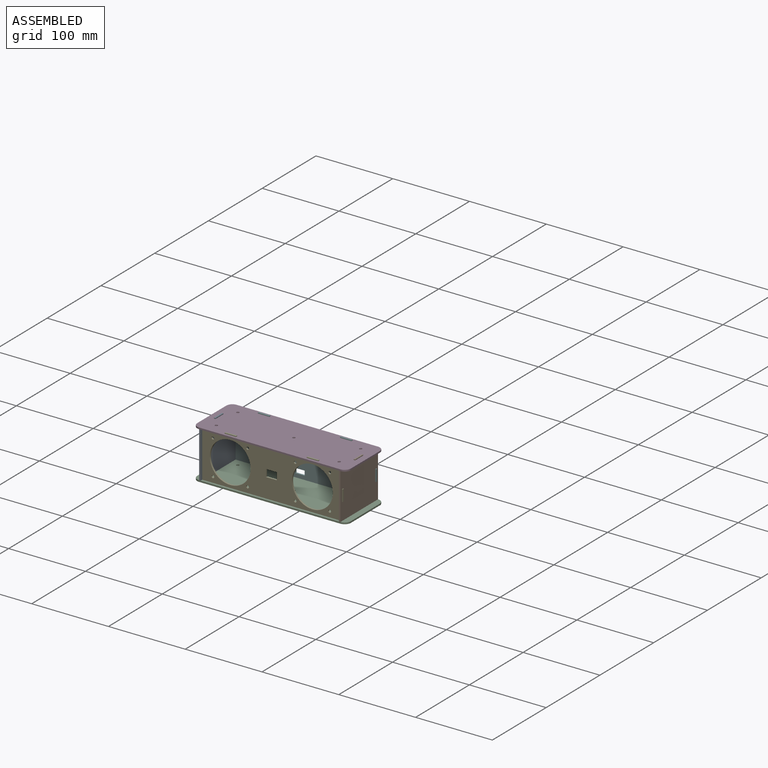
[diagram: assembled view]
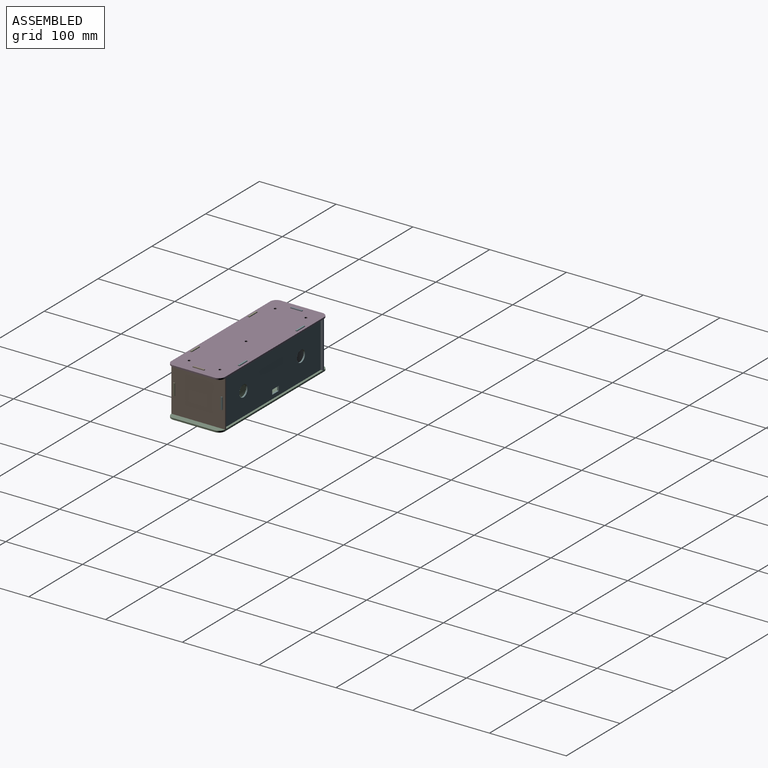
[diagram: assembled view, second angle]
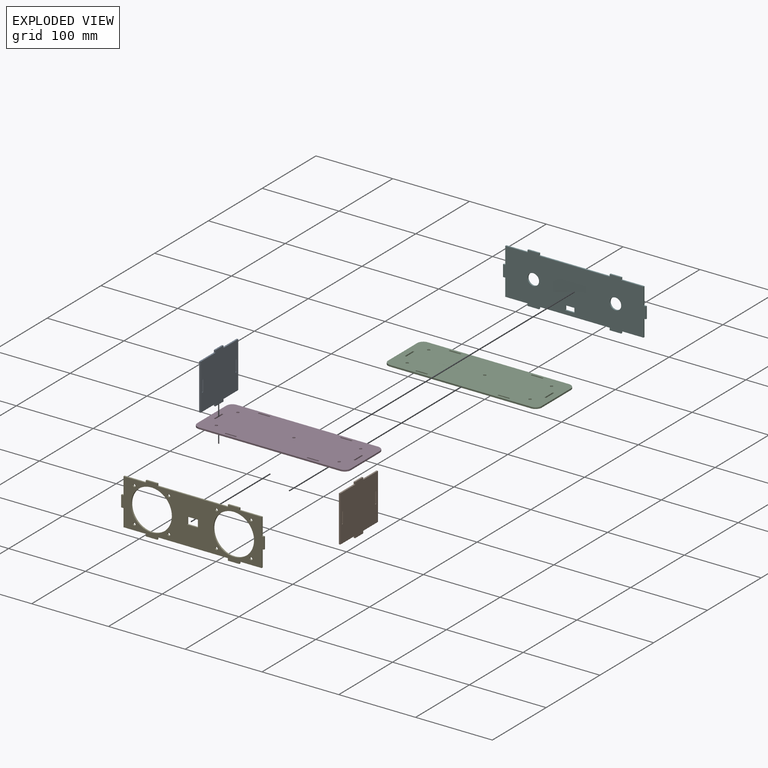
[diagram: exploded view]
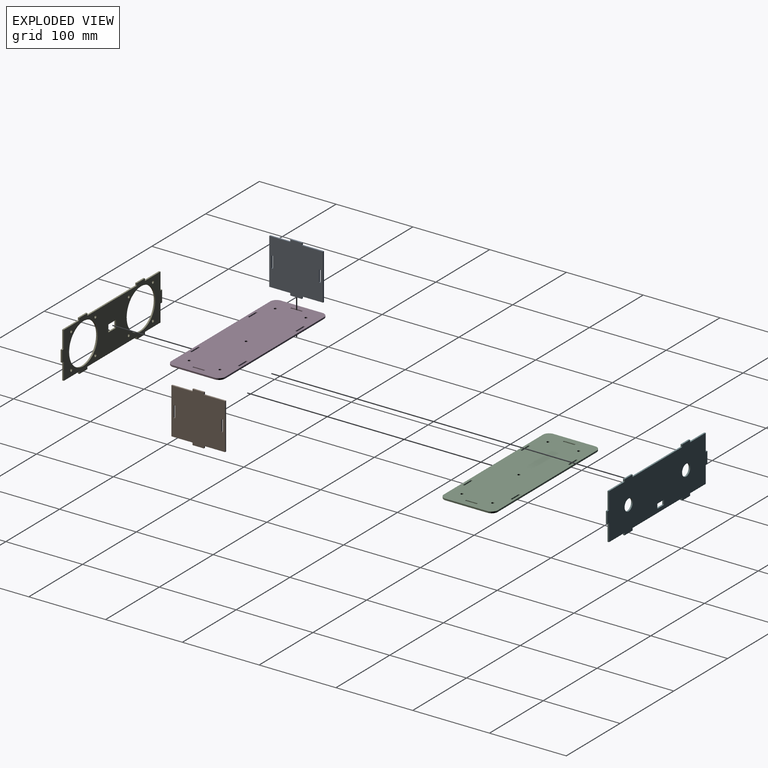
[diagram: exploded view, second angle]
FCSTD DOCUMENT  (FreeCAD 1.0R39109 (Git))
Label: aimiya_asm
License: All rights reserved
LicenseURL: https://en.wikipedia.org/wiki/All_rights_reserved
objects: App::Link×6, App::FeaturePython×6, Assembly::JointGroup×1, Assembly::AssemblyObject×1
EXTERNAL_REF file=aimiya_bt_spk_top_bot.FCStd obj=Body
EXTERNAL_REF file=aimiya_bt_spk_side.FCStd obj=Body
EXTERNAL_REF file=aimiya_bt_spk_front.FCStd obj=Body001
EXTERNAL_REF file=aimiya_bt_spk_back.FCStd obj=Body001

FEATURE [App::Link] main
  LinkedObject = -> <external aimiya_bt_spk_top_bot.FCStd>#Body
FEATURE [App::FeaturePython] GroundedJoint  # Assembly grounded joint (typed FeaturePython)
  ObjectToGround = -> main
FEATURE [App::Link] main001
  LinkPlacement = pos=(-6.34e-14,-9e-16,62) rot=(0,0,1;0rad)
  LinkedObject = -> <external aimiya_bt_spk_top_bot.FCStd>#Body
  Placement = pos=(-6.34e-14,-9e-16,62) rot=(0,0,1;0rad)
FEATURE [App::Link] body
  LinkPlacement = pos=(10,70,2) rot=(-0.57735,0.57735,0.57735;4.18879rad)
  LinkedObject = -> <external aimiya_bt_spk_side.FCStd>#Body
  Placement = pos=(10,70,2) rot=(-0.57735,0.57735,0.57735;4.18879rad)
FEATURE [App::Link] body001
  LinkPlacement = pos=(192,70,2) rot=(-0.57735,0.57735,0.57735;4.18879rad)
  LinkedObject = -> <external aimiya_bt_spk_side.FCStd>#Body
  Placement = pos=(192,70,2) rot=(-0.57735,0.57735,0.57735;4.18879rad)
FEATURE [App::Link] main002
  LinkPlacement = pos=(10,5,2) rot=(1,0,0;1.5708rad)
  LinkedObject = -> <external aimiya_bt_spk_front.FCStd>#Body001
  Placement = pos=(10,5,2) rot=(1,0,0;1.5708rad)
FEATURE [App::Link] main003
  LinkPlacement = pos=(190,65,2) rot=(0,0.707107,0.707107;3.14159rad)
  LinkedObject = -> <external aimiya_bt_spk_back.FCStd>#Body001
  Placement = pos=(190,65,2) rot=(0,0.707107,0.707107;3.14159rad)
FEATURE [App::FeaturePython] Joint  label="고정됨"  # Assembly joint (typed FeaturePython)
  Activated = true
  AngleMax = 0
  AngleMin = 0
  Detach1 = false
  Detach2 = false
  Distance = 0
  Distance2 = 0
  EnableAngleMax = false
  EnableAngleMin = false
  EnableLengthMax = false
  EnableLengthMin = false
  JointType = 0 (Fixed)
  LengthMax = 0
  LengthMin = 0
  Offset2 = pos=(0,0,0) rot=(0,0,-1;1.5708rad)
  Placement1 = pos=(35,0,0) rot=(0.707107,0,0.707107;3.14159rad)
  Placement2 = pos=(10,35,2) rot=(0,0.707107,0.707107;3.14159rad)
  Reference1 = -> Assembly [body.Sketch.Edge1,body.Sketch.Edge1]
  Reference2 = -> Assembly [main.Edge62,main.Edge62]
FEATURE [App::FeaturePython] Joint001  label="고정됨001"  # Assembly joint (typed FeaturePython)
  Activated = true
  AngleMax = 0
  AngleMin = 0
  Detach1 = false
  Detach2 = false
  Distance = 0
  Distance2 = 0
  EnableAngleMax = false
  EnableAngleMin = false
  EnableLengthMax = false
  EnableLengthMin = false
  JointType = 0 (Fixed)
  LengthMax = 0
  LengthMin = 0
  Offset2 = pos=(0,0,0) rot=(0,0,-1;1.5708rad)
  Placement1 = pos=(35,0,0) rot=(0.707107,0,0.707107;3.14159rad)
  Placement2 = pos=(192,35,2) rot=(0,-0.707107,0.707107;3.14159rad)
  Reference1 = -> Assembly [body001.Sketch.Edge1,body001.Sketch.Edge1]
  Reference2 = -> Assembly [main.Edge73,main.Edge73]
FEATURE [App::FeaturePython] Joint002  label="고정됨002"  # Assembly joint (typed FeaturePython)
  Activated = true
  AngleMax = 0
  AngleMin = 0
  Detach1 = false
  Detach2 = false
  Distance = 0
  Distance2 = 0
  EnableAngleMax = false
  EnableAngleMin = false
  EnableLengthMax = false
  EnableLengthMin = false
  JointType = 0 (Fixed)
  LengthMax = 0
  LengthMin = 0
  Placement1 = pos=(180,37.5,1) rot=(0,0,1;0rad)
  Placement2 = pos=(66,37.5,2) rot=(-0.707107,0,0.707107;3.14159rad)
  Reference1 = -> Assembly [main002.Edge110,main002.Edge110]
  Reference2 = -> Assembly [body001.Edge44,body001.Edge44]
FEATURE [App::FeaturePython] Joint003  label="고정됨003"  # Assembly joint (typed FeaturePython)
  Activated = true
  AngleMax = 0
  AngleMin = 0
  Detach1 = false
  Detach2 = false
  Distance = 0
  Distance2 = 0
  EnableAngleMax = false
  EnableAngleMin = false
  EnableLengthMax = false
  EnableLengthMin = false
  JointType = 0 (Fixed)
  LengthMax = 0
  LengthMin = 0
  Placement1 = pos=(0,37.5,1) rot=(0,0,1;0rad)
  Placement2 = pos=(4,37.5,2) rot=(0.707107,0,0.707107;3.14159rad)
  Reference1 = -> Assembly [main003.Edge40,main003.Edge40]
  Reference2 = -> Assembly [body001.Edge37,body001.Edge37]
FEATURE [App::FeaturePython] Joint004  label="고정됨004"  # Assembly joint (typed FeaturePython)
  Activated = true
  AngleMax = 0
  AngleMin = 0
  Detach1 = false
  Detach2 = false
  Distance = 0
  Distance2 = 0
  EnableAngleMax = false
  EnableAngleMin = false
  EnableLengthMax = false
  EnableLengthMin = false
  JointType = 0 (Fixed)
  LengthMax = 0
  LengthMin = 0
  Offset2 = pos=(0,0,0) rot=(0,0,1;1.5708rad)
  Placement1 = pos=(44,60,1) rot=(0,0,1;0rad)
  Placement2 = pos=(54,4,0) rot=(-1,0,0;4.71239rad)
  Reference1 = -> Assembly [main002.Edge103,main002.Edge103]
  Reference2 = -> Assembly [main001.Edge14,main001.Edge14]
FEATURE [Assembly::JointGroup] Joints
  Group = -> [GroundedJoint,Joint,Joint001,Joint002,Joint003,Joint004]
FEATURE [Assembly::AssemblyObject] Assembly
  Group = -> [Joints,main,GroundedJoint,main001,body,body001,main002,main003,Joint,Joint001,Joint002,Joint003,Joint004]
  Origin = -> Origin
  Type = Assembly

RESOLVED EXTERNAL PARTS (link-assembly join: the EXTERNAL_REF files above that resolve inside this repo's crawl, each included once):
---- part aimiya_bt_spk_back.FCStd = doc fcstd_3eabdf9989e4 ----
FCSTD DOCUMENT  (FreeCAD 1.0R39109 (Git))
Label: aimiya_bt_spk_back
License: All rights reserved
LicenseURL: https://en.wikipedia.org/wiki/All_rights_reserved
objects: Sketcher::SketchObject×2, PartDesign::Pad×1, PartDesign::Pocket×1, PartDesign::Body×1
note: 11 computed .brp shape members not serialized (recipe doc carries the construction recipe); baked Part::Feature solids carry a one-line shape summary decoded from their .brp

FEATURE [Sketcher::SketchObject] Sketch  label="holes"
  ArcFitTolerance = 1e-06
  AttachmentSupport = -> [XY_Plane001]
  FullyConstrained = true
  MakeInternals = false
  MapMode = 5
  sketch-geometry (15):
    g0: LineSegment [constr] StartX=0 StartY=0 StartZ=0 EndX=180 EndY=0 EndZ=0
    g1: LineSegment [constr] StartX=180 StartY=0 StartZ=0 EndX=180 EndY=60 EndZ=0
    g2: LineSegment [constr] StartX=180 StartY=60 StartZ=0 EndX=0 EndY=60 EndZ=0
    g3: LineSegment [constr] StartX=0 StartY=60 StartZ=0 EndX=0 EndY=0 EndZ=0
    g4: LineSegment [constr] StartX=0 StartY=30 StartZ=0 EndX=180 EndY=30 EndZ=0
    g5: LineSegment [constr] StartX=90 StartY=60 StartZ=0 EndX=90 EndY=0 EndZ=0
    g6: GeomPoint [constr] X=90 Y=30 Z=0
    g7: GeomPoint [constr] X=36.5 Y=30 Z=0
    g8: Circle CenterX=36.5 CenterY=30 CenterZ=0 NormalX=0 NormalY=0 NormalZ=1 AngleXU=0 Radius=7.5
    g9: Circle CenterX=143.5 CenterY=30 CenterZ=0 NormalX=0 NormalY=0 NormalZ=1 AngleXU=0 Radius=7.5
    g10: GeomPoint [constr] X=102 Y=5 Z=0
    g11: LineSegment StartX=102 StartY=5 StartZ=0 EndX=102 EndY=11 EndZ=0
    g12: LineSegment StartX=102 StartY=11 StartZ=0 EndX=90 EndY=11 EndZ=0
    g13: LineSegment StartX=90 StartY=11 StartZ=0 EndX=90 EndY=5 EndZ=0
    g14: LineSegment StartX=90 StartY=5 StartZ=0 EndX=102 EndY=5 EndZ=0
  constraints (35):
    c: Coincident(g0,g1)
    c: Coincident(g1,g2)
    c: Coincident(g2,g3)
    c: Coincident(g3,g0)
    c: Horizontal(g0)
    c: Horizontal(g2)
    c: Vertical(g1)
    c: Vertical(g3)
    c: Coincident(g0,g-1)
    c: DistanceX(g0,g0) = 180
    c: DistanceY(g3,g3) = 60
    c: Symmetric(g3,g3,g4)
    c: Symmetric(g1,g1,g4)
    c: Symmetric(g2,g2,g5)
    c: Symmetric(g0,g0,g5)
    c: Symmetric(g4,g4,g6)
    c: PointOnObject(g7,g4)
    c: DistanceX(g7,g6) = 53.5
    c: Diameter(g8) = 15
    c: Coincident(g8,g7)
    c: Equal(g8,g9)
    c: Symmetric(g8,g9,g5)
    c: Distance(g10,g0) = 5
    c: Distance(g10,g5) = 12
    c: Coincident(g11,g12)
    c: Coincident(g12,g13)
    c: Coincident(g13,g14)
    c: Coincident(g14,g11)
    c: Vertical(g11)
    c: Vertical(g13)
    c: Horizontal(g12)
    c: Horizontal(g14)
    c: Distance(g12,g14) = 6
    c: Coincident(g11,g10)
    c: PointOnObject(g12,g5)
FEATURE [Sketcher::SketchObject] Sketch001
  ArcFitTolerance = 1e-06
  AttachmentSupport = -> [XY_Plane001]
  FullyConstrained = true
  MakeInternals = false
  MapMode = 5
  sketch-geometry (33):
    g0: LineSegment StartX=0 StartY=0 StartZ=0 EndX=180 EndY=0 EndZ=0
    g1: LineSegment StartX=180 StartY=0 StartZ=0 EndX=180 EndY=60 EndZ=0
    g2: LineSegment StartX=180 StartY=60 StartZ=0 EndX=0 EndY=60 EndZ=0
    g3: LineSegment StartX=0 StartY=60 StartZ=0 EndX=0 EndY=0 EndZ=0
    g4: LineSegment [constr] StartX=0 StartY=30 StartZ=0 EndX=180 EndY=30 EndZ=0
    g5: LineSegment [constr] StartX=90 StartY=60 StartZ=0 EndX=90 EndY=0 EndZ=0
    g6: LineSegment [constr] StartX=36.5 StartY=60 StartZ=0 EndX=36.5 EndY=0 EndZ=0
    g7: LineSegment StartX=29 StartY=60 StartZ=0 EndX=29 EndY=63 EndZ=0
    g8: LineSegment StartX=29 StartY=63 StartZ=0 EndX=44 EndY=63 EndZ=0
    g9: LineSegment StartX=44 StartY=60 StartZ=0 EndX=44 EndY=63 EndZ=0
    g10: LineSegment StartX=29 StartY=60 StartZ=0 EndX=44 EndY=60 EndZ=0
    g11: LineSegment [constr] StartX=36.5 StartY=63 StartZ=0 EndX=36.5 EndY=60 EndZ=0
    g12: LineSegment StartX=29 StartY=3e-16 StartZ=0 EndX=29 EndY=-3 EndZ=0
    g13: LineSegment StartX=29 StartY=-3 StartZ=0 EndX=44 EndY=-3 EndZ=0
    g14: LineSegment StartX=44 StartY=-5.5e-15 StartZ=0 EndX=44 EndY=-3 EndZ=0
    g15: LineSegment StartX=29 StartY=3e-16 StartZ=0 EndX=44 EndY=-5.5e-15 EndZ=0
    g16: LineSegment StartX=151 StartY=60 StartZ=0 EndX=151 EndY=63 EndZ=0
    g17: LineSegment StartX=151 StartY=63 StartZ=0 EndX=136 EndY=63 EndZ=0
    g18: LineSegment StartX=136 StartY=60 StartZ=0 EndX=136 EndY=63 EndZ=0
    g19: LineSegment StartX=151 StartY=60 StartZ=0 EndX=136 EndY=60 EndZ=0
    g20: LineSegment StartX=151 StartY=3e-16 StartZ=0 EndX=151 EndY=-3 EndZ=0
    g21: LineSegment StartX=151 StartY=-3 StartZ=0 EndX=136 EndY=-3 EndZ=0
    g22: LineSegment StartX=136 StartY=-5.5e-15 StartZ=0 EndX=136 EndY=-3 EndZ=0
    g23: LineSegment StartX=151 StartY=3e-16 StartZ=0 EndX=136 EndY=-5.5e-15 EndZ=0
    g24: LineSegment StartX=0 StartY=37.5 StartZ=0 EndX=-3 EndY=37.5 EndZ=0
    g25: LineSegment StartX=-3 StartY=37.5 StartZ=0 EndX=-3 EndY=22.5 EndZ=0
    g26: LineSegment StartX=-3 StartY=22.5 StartZ=0 EndX=0 EndY=22.5 EndZ=0
    g27: LineSegment [constr] StartX=-3 StartY=30 StartZ=0 EndX=0 EndY=30 EndZ=0
    g28: LineSegment StartX=0 StartY=37.5 StartZ=0 EndX=0 EndY=22.5 EndZ=0
    g29: LineSegment StartX=180 StartY=37.5 StartZ=0 EndX=183 EndY=37.5 EndZ=0
    g30: LineSegment StartX=183 StartY=37.5 StartZ=0 EndX=183 EndY=22.5 EndZ=0
    g31: LineSegment StartX=183 StartY=22.5 StartZ=0 EndX=180 EndY=22.5 EndZ=0
    g32: LineSegment StartX=180 StartY=37.5 StartZ=0 EndX=180 EndY=22.5 EndZ=0
  constraints (79):
    c: Coincident(g0,g1)
    c: Coincident(g1,g2)
    c: Coincident(g2,g3)
    c: Coincident(g3,g0)
    c: Horizontal(g0)
    c: Horizontal(g2)
    c: Vertical(g1)
    c: Vertical(g3)
    c: Distance(g1,g3) = 180
    c: Distance(g0,g2) = 60
    c: Coincident(g0,g-1)
    c: Symmetric(g3,g3,g4)
    c: Symmetric(g1,g1,g4)
    c: Symmetric(g2,g2,g5)
    c: Symmetric(g0,g0,g5)
    c: PointOnObject(g6,g2)
    c: PointOnObject(g6,g0)
    c: Vertical(g6)
    c: Distance(g5,g6) = 53.5
    c: Distance(g7) = 3
    c: Vertical(g7)
    c: PointOnObject(g7,g2)
    c: Distance(g8) = 15
    c: Horizontal(g8)
    c: Coincident(g8,g7)
    c: Distance(g9) = 3
    c: Vertical(g9)
    c: Coincident(g8,g9)
    c: Coincident(g10,g7)
    c: Coincident(g10,g9)
    c: Vertical(g11)
    c: Symmetric(g8,g8,g11)
    c: Coincident(g11,g6)
    c: Symmetric(g7,g12,g4)
    c: Symmetric(g7,g12,g4)
    c: Symmetric(g8,g13,g4)
    c: Symmetric(g8,g13,g4)
    c: Symmetric(g9,g14,g4)
    c: Symmetric(g9,g14,g4)
    c: Symmetric(g10,g15,g4)
    c: Symmetric(g10,g15,g4)
    c: Symmetric(g7,g16,g5)
    c: Symmetric(g7,g16,g5)
    c: Symmetric(g8,g17,g5)
    c: Symmetric(g8,g17,g5)
    c: Symmetric(g9,g18,g5)
    c: Symmetric(g9,g18,g5)
    c: Symmetric(g10,g19,g5)
    c: Symmetric(g10,g19,g5)
    c: Symmetric(g12,g20,g5)
    c: Symmetric(g12,g20,g5)
    c: Symmetric(g13,g21,g5)
    c: Symmetric(g13,g21,g5)
    c: Symmetric(g14,g22,g5)
    c: Symmetric(g14,g22,g5)
    c: Symmetric(g15,g23,g5)
    c: Symmetric(g15,g23,g5)
    c: Distance(g24) = 3
    c: Horizontal(g24)
    c: PointOnObject(g24,g3)
    c: Distance(g25) = 15
    c: Vertical(g25)
    c: Coincident(g25,g24)
    c: Horizontal(g26)
    c: Coincident(g26,g25)
    c: PointOnObject(g26,g3)
    c: Horizontal(g27)
    c: Symmetric(g25,g25,g27)
    c: Coincident(g27,g4)
    c: Coincident(g28,g24)
    c: Coincident(g28,g26)
    c: Symmetric(g24,g29,g5)
    c: Symmetric(g24,g29,g5)
    c: Symmetric(g25,g30,g5)
    c: Symmetric(g25,g30,g5)
    c: Symmetric(g26,g31,g5)
    c: Symmetric(g26,g31,g5)
    c: Symmetric(g28,g32,g5)
    c: Symmetric(g28,g32,g5)
FEATURE [PartDesign::Pad] Pad
  Direction = (0,0,1)
  Length = 2
  Length2 = 10
  Profile = -> Sketch001
  ReferenceAxis = -> Sketch001 [N_Axis]
  Refine = true
  Suppressed = false
  Type = 0
FEATURE [PartDesign::Pocket] Pocket
  BaseFeature = -> Pad
  Direction = (0,0,-1)
  Length = 2
  Length2 = 5
  Profile = -> Sketch
  ReferenceAxis = -> Sketch [N_Axis]
  Refine = true
  Reversed = true
  Suppressed = false
  Type = 0
FEATURE [PartDesign::Body] Body001  label="main"
  AllowCompound = false
  Group = -> [Sketch,Sketch001,Pad,Pocket]
  Origin = -> Origin001
  Tip = -> Pocket
---- part aimiya_bt_spk_front.FCStd = doc fcstd_86d4b1810238 ----
FCSTD DOCUMENT  (FreeCAD 1.0R39109 (Git))
Label: aimiya_bt_spk_front
License: All rights reserved
LicenseURL: https://en.wikipedia.org/wiki/All_rights_reserved
objects: Sketcher::SketchObject×2, PartDesign::Pad×1, PartDesign::Groove×1, PartDesign::Body×1
note: 11 computed .brp shape members not serialized (recipe doc carries the construction recipe); baked Part::Feature solids carry a one-line shape summary decoded from their .brp

FEATURE [Sketcher::SketchObject] Sketch  label="holes"
  ArcFitTolerance = 1e-06
  AttachmentSupport = -> [XY_Plane001]
  FullyConstrained = true
  MakeInternals = false
  MapMode = 5
  sketch-geometry (34):
    g0: LineSegment [constr] StartX=0 StartY=0 StartZ=0 EndX=180 EndY=0 EndZ=0
    g1: LineSegment [constr] StartX=180 StartY=0 StartZ=0 EndX=180 EndY=60 EndZ=0
    g2: LineSegment [constr] StartX=180 StartY=60 StartZ=0 EndX=0 EndY=60 EndZ=0
    g3: LineSegment [constr] StartX=0 StartY=60 StartZ=0 EndX=0 EndY=0 EndZ=0
    g4: LineSegment [constr] StartX=0 StartY=30 StartZ=0 EndX=180 EndY=30 EndZ=0
    g5: LineSegment [constr] StartX=90 StartY=60 StartZ=0 EndX=90 EndY=0 EndZ=0
    g6: LineSegment [constr] StartX=10 StartY=3.5 StartZ=0 EndX=63 EndY=3.5 EndZ=0
    g7: LineSegment [constr] StartX=63 StartY=3.5 StartZ=0 EndX=63 EndY=56.5 EndZ=0
    g8: LineSegment [constr] StartX=63 StartY=56.5 StartZ=0 EndX=10 EndY=56.5 EndZ=0
    g9: LineSegment [constr] StartX=10 StartY=56.5 StartZ=0 EndX=10 EndY=3.5 EndZ=0
    g10: GeomPoint [constr] X=36.5 Y=30 Z=0
    g11: Circle CenterX=14 CenterY=52.7541 CenterZ=0 NormalX=0 NormalY=0 NormalZ=1 AngleXU=0 Radius=1.75
    g12: LineSegment [constr] StartX=36.5 StartY=56.5 StartZ=0 EndX=36.5 EndY=3.5 EndZ=0
    g13: Circle CenterX=59 CenterY=52.7541 CenterZ=0 NormalX=0 NormalY=0 NormalZ=1 AngleXU=0 Radius=1.75
    g14: Circle CenterX=14 CenterY=7.24588 CenterZ=0 NormalX=0 NormalY=0 NormalZ=1 AngleXU=0 Radius=1.75
    g15: Circle CenterX=59 CenterY=7.24588 CenterZ=0 NormalX=0 NormalY=0 NormalZ=1 AngleXU=0 Radius=1.75
    g16: Circle CenterX=36.5 CenterY=30 CenterZ=0 NormalX=0 NormalY=0 NormalZ=1 AngleXU=0 Radius=26.5
    g17: LineSegment [constr] StartX=180 StartY=30 StartZ=0 EndX=0 EndY=30 EndZ=0
    g18: LineSegment [constr] StartX=170 StartY=3.5 StartZ=0 EndX=117 EndY=3.5 EndZ=0
    g19: LineSegment [constr] StartX=117 StartY=3.5 StartZ=0 EndX=117 EndY=56.5 EndZ=0
    g20: LineSegment [constr] StartX=117 StartY=56.5 StartZ=0 EndX=170 EndY=56.5 EndZ=0
    g21: LineSegment [constr] StartX=170 StartY=56.5 StartZ=0 EndX=170 EndY=3.5 EndZ=0
    g22: GeomPoint [constr] X=143.5 Y=30 Z=0
    g23: Circle CenterX=166 CenterY=52.7541 CenterZ=0 NormalX=0 NormalY=0 NormalZ=1 AngleXU=0 Radius=1.75
    g24: LineSegment [constr] StartX=143.5 StartY=56.5 StartZ=0 EndX=143.5 EndY=3.5 EndZ=0
    g25: Circle CenterX=121 CenterY=52.7541 CenterZ=0 NormalX=0 NormalY=0 NormalZ=1 AngleXU=0 Radius=1.75
    g26: Circle CenterX=166 CenterY=7.24588 CenterZ=0 NormalX=0 NormalY=0 NormalZ=1 AngleXU=0 Radius=1.75
    g27: Circle CenterX=121 CenterY=7.24588 CenterZ=0 NormalX=0 NormalY=0 NormalZ=1 AngleXU=0 Radius=1.75
    g28: Circle CenterX=143.5 CenterY=30 CenterZ=0 NormalX=0 NormalY=0 NormalZ=1 AngleXU=0 Radius=26.5
    g29: LineSegment StartX=83 StartY=25.25 StartZ=0 EndX=97 EndY=25.25 EndZ=0
    g30: LineSegment StartX=97 StartY=25.25 StartZ=0 EndX=97 EndY=34.75 EndZ=0
    g31: LineSegment StartX=97 StartY=34.75 StartZ=0 EndX=83 EndY=34.75 EndZ=0
    g32: LineSegment StartX=83 StartY=34.75 StartZ=0 EndX=83 EndY=25.25 EndZ=0
    g33: GeomPoint [constr] X=90 Y=30 Z=0
  constraints (76):
    c: Coincident(g0,g1)
    c: Coincident(g1,g2)
    c: Coincident(g2,g3)
    c: Coincident(g3,g0)
    c: Horizontal(g0)
    c: Horizontal(g2)
    c: Vertical(g1)
    c: Vertical(g3)
    c: Coincident(g0,g-1)
    c: DistanceX(g0,g0) = 180
    c: DistanceY(g3,g3) = 60
    c: Symmetric(g3,g3,g4)
    c: Symmetric(g1,g1,g4)
    c: Symmetric(g2,g2,g5)
    c: Symmetric(g0,g0,g5)
    c: Coincident(g6,g7)
    c: Coincident(g7,g8)
    c: Coincident(g8,g9)
    c: Coincident(g9,g6)
    c: Horizontal(g6)
    c: Horizontal(g8)
    c: Vertical(g7)
    c: Vertical(g9)
    c: Symmetric(g8,g6,g10)
    c: Distance(g7,g9) = 53
    c: Distance(g6,g8) = 53
    c: PointOnObject(g10,g4)
    c: Distance(g3,g9) = 10
    c: Diameter(g11) = 3.5
    c: Symmetric(g8,g8,g12)
    c: Symmetric(g6,g6,g12)
    c: Distance(g11,g10) = 32
    c: Distance(g11,g12) = 22.5
    c: Equal(g11,g13)
    c: Symmetric(g11,g13,g12)
    c: Equal(g11,g14)
    c: Symmetric(g11,g14,g4)
    c: Equal(g14,g15)
    c: Symmetric(g14,g15,g12)
    c: Coincident(g16,g10)
    c: PointOnObject(g12,g16)
    c: Symmetric(g4,g17,g5)
    c: Symmetric(g4,g17,g5)
    c: Symmetric(g6,g18,g5)
    c: Symmetric(g6,g18,g5)
    c: Symmetric(g7,g19,g5)
    c: Symmetric(g7,g19,g5)
    c: Symmetric(g8,g20,g5)
    c: Symmetric(g8,g20,g5)
    c: Symmetric(g9,g21,g5)
    c: Symmetric(g9,g21,g5)
    c: Symmetric(g10,g22,g5)
    c: Equal(g11,g23)
    c: Symmetric(g11,g23,g5)
    c: Symmetric(g12,g24,g5)
    c: Symmetric(g12,g24,g5)
    c: Equal(g13,g25)
    c: Symmetric(g13,g25,g5)
    c: Equal(g14,g26)
    c: Symmetric(g14,g26,g5)
    c: Equal(g15,g27)
    c: Symmetric(g15,g27,g5)
    c: Equal(g16,g28)
    c: Symmetric(g16,g28,g5)
    c: Coincident(g29,g30)
    c: Coincident(g30,g31)
    c: Coincident(g31,g32)
    c: Coincident(g32,g29)
    c: Horizontal(g29)
    c: Horizontal(g31)
    c: Vertical(g30)
    c: Vertical(g32)
    c: Symmetric(g31,g29,g33)
    c: Distance(g30,g32) = 14
    c: Distance(g29,g31) = 9.5
    c: Symmetric(g4,g4,g33)
FEATURE [Sketcher::SketchObject] Sketch001
  ArcFitTolerance = 1e-06
  AttachmentSupport = -> [XY_Plane001]
  FullyConstrained = true
  MakeInternals = false
  MapMode = 5
  sketch-geometry (33):
    g0: LineSegment StartX=0 StartY=0 StartZ=0 EndX=180 EndY=0 EndZ=0
    g1: LineSegment StartX=180 StartY=0 StartZ=0 EndX=180 EndY=60 EndZ=0
    g2: LineSegment StartX=180 StartY=60 StartZ=0 EndX=0 EndY=60 EndZ=0
    g3: LineSegment StartX=0 StartY=60 StartZ=0 EndX=0 EndY=0 EndZ=0
    g4: LineSegment [constr] StartX=0 StartY=30 StartZ=0 EndX=180 EndY=30 EndZ=0
    g5: LineSegment [constr] StartX=90 StartY=60 StartZ=0 EndX=90 EndY=0 EndZ=0
    g6: LineSegment [constr] StartX=36.5 StartY=60 StartZ=0 EndX=36.5 EndY=0 EndZ=0
    g7: LineSegment StartX=29 StartY=60 StartZ=0 EndX=29 EndY=63 EndZ=0
    g8: LineSegment StartX=29 StartY=63 StartZ=0 EndX=44 EndY=63 EndZ=0
    g9: LineSegment StartX=44 StartY=60 StartZ=0 EndX=44 EndY=63 EndZ=0
    g10: LineSegment StartX=29 StartY=60 StartZ=0 EndX=44 EndY=60 EndZ=0
    g11: LineSegment [constr] StartX=36.5 StartY=63 StartZ=0 EndX=36.5 EndY=60 EndZ=0
    g12: LineSegment StartX=29 StartY=3e-16 StartZ=0 EndX=29 EndY=-3 EndZ=0
    g13: LineSegment StartX=29 StartY=-3 StartZ=0 EndX=44 EndY=-3 EndZ=0
    g14: LineSegment StartX=44 StartY=4.6e-15 StartZ=0 EndX=44 EndY=-3 EndZ=0
    g15: LineSegment StartX=29 StartY=3e-16 StartZ=0 EndX=44 EndY=4.6e-15 EndZ=0
    g16: LineSegment StartX=151 StartY=60 StartZ=0 EndX=151 EndY=63 EndZ=0
    g17: LineSegment StartX=151 StartY=63 StartZ=0 EndX=136 EndY=63 EndZ=0
    g18: LineSegment StartX=136 StartY=60 StartZ=0 EndX=136 EndY=63 EndZ=0
    g19: LineSegment StartX=151 StartY=60 StartZ=0 EndX=136 EndY=60 EndZ=0
    g20: LineSegment StartX=151 StartY=3e-16 StartZ=0 EndX=151 EndY=-3 EndZ=0
    g21: LineSegment StartX=151 StartY=-3 StartZ=0 EndX=136 EndY=-3 EndZ=0
    g22: LineSegment StartX=136 StartY=4.6e-15 StartZ=0 EndX=136 EndY=-3 EndZ=0
    g23: LineSegment StartX=151 StartY=3e-16 StartZ=0 EndX=136 EndY=4.6e-15 EndZ=0
    g24: LineSegment StartX=0 StartY=37.5 StartZ=0 EndX=-3 EndY=37.5 EndZ=0
    g25: LineSegment StartX=-3 StartY=37.5 StartZ=0 EndX=-3 EndY=22.5 EndZ=0
    g26: LineSegment StartX=-3 StartY=22.5 StartZ=0 EndX=0 EndY=22.5 EndZ=0
    g27: LineSegment [constr] StartX=-3 StartY=30 StartZ=0 EndX=0 EndY=30 EndZ=0
    g28: LineSegment StartX=0 StartY=37.5 StartZ=0 EndX=0 EndY=22.5 EndZ=0
    g29: LineSegment StartX=180 StartY=37.5 StartZ=0 EndX=183 EndY=37.5 EndZ=0
    g30: LineSegment StartX=183 StartY=37.5 StartZ=0 EndX=183 EndY=22.5 EndZ=0
    g31: LineSegment StartX=183 StartY=22.5 StartZ=0 EndX=180 EndY=22.5 EndZ=0
    g32: LineSegment StartX=180 StartY=37.5 StartZ=0 EndX=180 EndY=22.5 EndZ=0
  constraints (79):
    c: Coincident(g0,g1)
    c: Coincident(g1,g2)
    c: Coincident(g2,g3)
    c: Coincident(g3,g0)
    c: Horizontal(g0)
    c: Horizontal(g2)
    c: Vertical(g1)
    c: Vertical(g3)
    c: Distance(g1,g3) = 180
    c: Distance(g0,g2) = 60
    c: Coincident(g0,g-1)
    c: Symmetric(g3,g3,g4)
    c: Symmetric(g1,g1,g4)
    c: Symmetric(g2,g2,g5)
    c: Symmetric(g0,g0,g5)
    c: PointOnObject(g6,g2)
    c: PointOnObject(g6,g0)
    c: Vertical(g6)
    c: Distance(g5,g6) = 53.5
    c: Distance(g7) = 3
    c: Vertical(g7)
    c: PointOnObject(g7,g2)
    c: Distance(g8) = 15
    c: Horizontal(g8)
    c: Coincident(g8,g7)
    c: Distance(g9) = 3
    c: Vertical(g9)
    c: Coincident(g8,g9)
    c: Coincident(g10,g7)
    c: Coincident(g10,g9)
    c: Vertical(g11)
    c: Symmetric(g8,g8,g11)
    c: Coincident(g11,g6)
    c: Symmetric(g7,g12,g4)
    c: Symmetric(g7,g12,g4)
    c: Symmetric(g8,g13,g4)
    c: Symmetric(g8,g13,g4)
    c: Symmetric(g9,g14,g4)
    c: Symmetric(g9,g14,g4)
    c: Symmetric(g10,g15,g4)
    c: Symmetric(g10,g15,g4)
    c: Symmetric(g7,g16,g5)
    c: Symmetric(g7,g16,g5)
    c: Symmetric(g8,g17,g5)
    c: Symmetric(g8,g17,g5)
    c: Symmetric(g9,g18,g5)
    c: Symmetric(g9,g18,g5)
    c: Symmetric(g10,g19,g5)
    c: Symmetric(g10,g19,g5)
    c: Symmetric(g12,g20,g5)
    c: Symmetric(g12,g20,g5)
    c: Symmetric(g13,g21,g5)
    c: Symmetric(g13,g21,g5)
    c: Symmetric(g14,g22,g5)
    c: Symmetric(g14,g22,g5)
    c: Symmetric(g15,g23,g5)
    c: Symmetric(g15,g23,g5)
    c: Distance(g24) = 3
    c: Horizontal(g24)
    c: PointOnObject(g24,g3)
    c: Distance(g25) = 15
    c: Vertical(g25)
    c: Coincident(g25,g24)
    c: Horizontal(g26)
    c: Coincident(g26,g25)
    c: PointOnObject(g26,g3)
    c: Horizontal(g27)
    c: Symmetric(g25,g25,g27)
    c: Coincident(g27,g4)
    c: Coincident(g28,g24)
    c: Coincident(g28,g26)
    c: Symmetric(g24,g29,g5)
    c: Symmetric(g24,g29,g5)
    c: Symmetric(g25,g30,g5)
    c: Symmetric(g25,g30,g5)
    c: Symmetric(g26,g31,g5)
    c: Symmetric(g26,g31,g5)
    c: Symmetric(g28,g32,g5)
    c: Symmetric(g28,g32,g5)
FEATURE [PartDesign::Pad] Pad
  Direction = (0,0,1)
  Length = 2
  Length2 = 10
  Profile = -> Sketch001
  ReferenceAxis = -> Sketch001 [N_Axis]
  Refine = true
  Suppressed = false
  Type = 0
FEATURE [PartDesign::Groove] Groove
  Angle = 360
  Angle2 = 60
  Axis = (0,1,0)
  Base = (0,0,0)
  BaseFeature = -> Pad
  Profile = -> Sketch
  ReferenceAxis = -> Sketch [V_Axis]
  Refine = true
  Suppressed = false
  Type = 0
FEATURE [PartDesign::Body] Body001  label="main"
  AllowCompound = false
  Group = -> [Sketch,Sketch001,Pad,Groove]
  Origin = -> Origin001
  Tip = -> Groove
---- part aimiya_bt_spk_side.FCStd = doc fcstd_9308889637d3 ----
FCSTD DOCUMENT  (FreeCAD 1.0R39109 (Git))
Label: aimiya_bt_spk_side
License: All rights reserved
LicenseURL: https://en.wikipedia.org/wiki/All_rights_reserved
objects: Sketcher::SketchObject×2, PartDesign::Pad×1, PartDesign::Pocket×1, PartDesign::Body×1
note: 11 computed .brp shape members not serialized (recipe doc carries the construction recipe); baked Part::Feature solids carry a one-line shape summary decoded from their .brp

FEATURE [Sketcher::SketchObject] Sketch
  ArcFitTolerance = 1e-06
  AttachmentSupport = -> [XY_Plane]
  FullyConstrained = true
  MakeInternals = false
  MapMode = 5
  sketch-geometry (22):
    g0: LineSegment StartX=0 StartY=0 StartZ=0 EndX=70 EndY=0 EndZ=0
    g1: LineSegment StartX=70 StartY=0 StartZ=0 EndX=70 EndY=60 EndZ=0
    g2: LineSegment StartX=70 StartY=60 StartZ=0 EndX=0 EndY=60 EndZ=0
    g3: LineSegment StartX=0 StartY=60 StartZ=0 EndX=0 EndY=0 EndZ=0
    g4: LineSegment [constr] StartX=0 StartY=30 StartZ=0 EndX=70 EndY=30 EndZ=0
    g5: LineSegment [constr] StartX=35 StartY=60 StartZ=0 EndX=35 EndY=0 EndZ=0
    g6: GeomPoint [constr] X=35 Y=30 Z=0
    g7: LineSegment StartX=27.5 StartY=60 StartZ=0 EndX=42.5 EndY=60 EndZ=0
    g8: LineSegment StartX=42.5 StartY=60 StartZ=0 EndX=42.5 EndY=63 EndZ=0
    g9: LineSegment StartX=42.5 StartY=63 StartZ=0 EndX=27.5 EndY=63 EndZ=0
    g10: LineSegment StartX=27.5 StartY=63 StartZ=0 EndX=27.5 EndY=60 EndZ=0
    g11: LineSegment [constr] StartX=27.5 StartY=61.5 StartZ=0 EndX=42.5 EndY=61.5 EndZ=0
    g12: LineSegment [constr] StartX=35 StartY=63 StartZ=0 EndX=35 EndY=60 EndZ=0
    g13: LineSegment [constr] StartX=4 StartY=0 StartZ=0 EndX=66 EndY=0 EndZ=0
    g14: LineSegment [constr] StartX=66 StartY=0 StartZ=0 EndX=66 EndY=60 EndZ=0
    g15: LineSegment [constr] StartX=66 StartY=60 StartZ=0 EndX=4 EndY=60 EndZ=0
    g16: LineSegment [constr] StartX=4 StartY=60 StartZ=0 EndX=4 EndY=0 EndZ=0
    g17: GeomPoint [constr] X=35 Y=30 Z=0
    g18: LineSegment StartX=27.5 StartY=1.42e-14 StartZ=0 EndX=42.5 EndY=1.42e-14 EndZ=0
    g19: LineSegment StartX=42.5 StartY=1.42e-14 StartZ=0 EndX=42.5 EndY=-3 EndZ=0
    g20: LineSegment StartX=42.5 StartY=-3 StartZ=0 EndX=27.5 EndY=-3 EndZ=0
    g21: LineSegment StartX=27.5 StartY=-3 StartZ=0 EndX=27.5 EndY=1.42e-14 EndZ=0
  constraints (51):
    c: Coincident(g0,g1)
    c: Coincident(g1,g2)
    c: Coincident(g2,g3)
    c: Coincident(g3,g0)
    c: Horizontal(g0)
    c: Horizontal(g2)
    c: Vertical(g1)
    c: Vertical(g3)
    c: Distance(g1,g3) = 70
    c: Distance(g0,g2) = 60
    c: Coincident(g0,g-1)
    c: Symmetric(g3,g3,g4)
    c: Symmetric(g1,g1,g4)
    c: Symmetric(g2,g2,g5)
    c: Symmetric(g0,g0,g5)
    c: Symmetric(g4,g4,g6)
    c: Coincident(g7,g8)
    c: Coincident(g8,g9)
    c: Coincident(g9,g10)
    c: Coincident(g10,g7)
    c: Horizontal(g7)
    c: Horizontal(g9)
    c: Vertical(g8)
    c: Vertical(g10)
    c: Distance(g8,g10) = 15
    c: Distance(g7,g9) = 3
    c: Symmetric(g10,g10,g11)
    c: Symmetric(g8,g8,g11)
    c: Symmetric(g9,g9,g12)
    c: Symmetric(g7,g7,g12)
    c: Coincident(g12,g5)
    c: Coincident(g13,g14)
    c: Coincident(g14,g15)
    c: Coincident(g15,g16)
    c: Coincident(g16,g13)
    c: Horizontal(g13)
    c: Horizontal(g15)
    c: Vertical(g14)
    c: Vertical(g16)
    c: Symmetric(g15,g13,g17)
    c: Distance(g14,g16) = 62
    c: Coincident(g17,g6)
    c: PointOnObject(g14,g2)
    c: Symmetric(g7,g18,g4)
    c: Symmetric(g7,g18,g4)
    c: Symmetric(g8,g19,g4)
    c: Symmetric(g8,g19,g4)
    c: Symmetric(g9,g20,g4)
    c: Symmetric(g9,g20,g4)
    c: Symmetric(g10,g21,g4)
    c: Symmetric(g10,g21,g4)
FEATURE [PartDesign::Pad] Pad
  Direction = (0,0,1)
  Length = 2
  Length2 = 10
  Profile = -> Sketch
  ReferenceAxis = -> Sketch [N_Axis]
  Refine = true
  Suppressed = false
  Type = 0
FEATURE [Sketcher::SketchObject] Sketch001
  ArcFitTolerance = 1e-06
  AttachmentSupport = -> [XY_Plane]
  FullyConstrained = true
  MakeInternals = false
  MapMode = 5
  sketch-geometry (22):
    g0: LineSegment [constr] StartX=0 StartY=0 StartZ=0 EndX=70 EndY=0 EndZ=0
    g1: LineSegment [constr] StartX=70 StartY=0 StartZ=0 EndX=70 EndY=60 EndZ=0
    g2: LineSegment [constr] StartX=70 StartY=60 StartZ=0 EndX=0 EndY=60 EndZ=0
    g3: LineSegment [constr] StartX=0 StartY=60 StartZ=0 EndX=0 EndY=0 EndZ=0
    g4: LineSegment [constr] StartX=0 StartY=30 StartZ=0 EndX=70 EndY=30 EndZ=0
    g5: LineSegment [constr] StartX=35 StartY=60 StartZ=0 EndX=35 EndY=0 EndZ=0
    g6: GeomPoint [constr] X=35 Y=30 Z=0
    g7: LineSegment [constr] StartX=5 StartY=0 StartZ=0 EndX=65 EndY=0 EndZ=0
    g8: LineSegment [constr] StartX=65 StartY=0 StartZ=0 EndX=65 EndY=60 EndZ=0
    g9: LineSegment [constr] StartX=65 StartY=60 StartZ=0 EndX=5 EndY=60 EndZ=0
    g10: LineSegment [constr] StartX=5 StartY=60 StartZ=0 EndX=5 EndY=0 EndZ=0
    g11: GeomPoint [constr] X=35 Y=30 Z=0
    g12: LineSegment StartX=65 StartY=37.5 StartZ=0 EndX=65 EndY=22.5 EndZ=0
    g13: LineSegment StartX=65 StartY=22.5 StartZ=0 EndX=67 EndY=22.5 EndZ=0
    g14: LineSegment StartX=67 StartY=22.5 StartZ=0 EndX=67 EndY=37.5 EndZ=0
    g15: LineSegment StartX=67 StartY=37.5 StartZ=0 EndX=65 EndY=37.5 EndZ=0
    g16: LineSegment [constr] StartX=66 StartY=37.5 StartZ=0 EndX=66 EndY=22.5 EndZ=0
    g17: LineSegment [constr] StartX=65 StartY=30 StartZ=0 EndX=67 EndY=30 EndZ=0
    g18: LineSegment StartX=5 StartY=37.5 StartZ=0 EndX=5 EndY=22.5 EndZ=0
    g19: LineSegment StartX=5 StartY=22.5 StartZ=0 EndX=3 EndY=22.5 EndZ=0
    g20: LineSegment StartX=3 StartY=22.5 StartZ=0 EndX=3 EndY=37.5 EndZ=0
    g21: LineSegment StartX=3 StartY=37.5 StartZ=0 EndX=5 EndY=37.5 EndZ=0
  constraints (50):
    c: Coincident(g0,g1)
    c: Coincident(g1,g2)
    c: Coincident(g2,g3)
    c: Coincident(g3,g0)
    c: Horizontal(g0)
    c: Horizontal(g2)
    c: Vertical(g1)
    c: Vertical(g3)
    c: Distance(g1,g3) = 70
    c: Distance(g0,g2) = 60
    c: Coincident(g0,g-1)
    c: Symmetric(g3,g3,g4)
    c: Symmetric(g1,g1,g4)
    c: Symmetric(g2,g2,g5)
    c: Symmetric(g0,g0,g5)
    c: Symmetric(g4,g4,g6)
    c: Coincident(g7,g8)
    c: Coincident(g8,g9)
    c: Coincident(g9,g10)
    c: Coincident(g10,g7)
    c: Horizontal(g7)
    c: Horizontal(g9)
    c: Vertical(g8)
    c: Vertical(g10)
    c: Symmetric(g9,g7,g11)
    c: Distance(g8,g10) = 60
    c: Coincident(g11,g6)
    c: PointOnObject(g8,g2)
    c: Coincident(g12,g13)
    c: Coincident(g13,g14)
    c: Coincident(g14,g15)
    c: Coincident(g15,g12)
    c: Vertical(g14)
    c: Horizontal(g13)
    c: Distance(g12,g14) = 2
    c: Distance(g13,g15) = 15
    c: Symmetric(g15,g15,g16)
    c: Symmetric(g13,g13,g16)
    c: Symmetric(g12,g12,g17)
    c: Symmetric(g14,g14,g17)
    c: Tangent(g12,g8)
    c: Tangent(g17,g4)
    c: Symmetric(g12,g18,g5)
    c: Symmetric(g12,g18,g5)
    c: Symmetric(g13,g19,g5)
    c: Symmetric(g13,g19,g5)
    c: Symmetric(g14,g20,g5)
    c: Symmetric(g14,g20,g5)
    c: Symmetric(g15,g21,g5)
    c: Symmetric(g15,g21,g5)
FEATURE [PartDesign::Pocket] Pocket
  BaseFeature = -> Pad
  Direction = (0,0,-1)
  Length = 2
  Length2 = 5
  Profile = -> Sketch001
  ReferenceAxis = -> Sketch001 [N_Axis]
  Refine = true
  Reversed = true
  Suppressed = false
  Type = 0
FEATURE [PartDesign::Body] Body  label="body"
  AllowCompound = false
  Group = -> [Sketch,Pad,Sketch001,Pocket]
  Origin = -> Origin
  Tip = -> Pocket
---- part aimiya_bt_spk_top_bot.FCStd = doc fcstd_4b7d8a3b12ba ----
FCSTD DOCUMENT  (FreeCAD 1.0R39109 (Git))
Label: aimiya_bt_spk_top_bot
License: All rights reserved
LicenseURL: https://en.wikipedia.org/wiki/All_rights_reserved
objects: Sketcher::SketchObject×2, PartDesign::Pad×1, PartDesign::Fillet×1, PartDesign::Pocket×1, PartDesign::Body×1
note: 14 computed .brp shape members not serialized (recipe doc carries the construction recipe); baked Part::Feature solids carry a one-line shape summary decoded from their .brp

FEATURE [Sketcher::SketchObject] Sketch  label="holes"
  ArcFitTolerance = 1e-06
  AttachmentSupport = -> [XY_Plane]
  FullyConstrained = true
  MakeInternals = false
  MapMode = 5
  sketch-geometry (51):
    g0: LineSegment [constr] StartX=0 StartY=0 StartZ=0 EndX=200 EndY=0 EndZ=0
    g1: LineSegment [constr] StartX=200 StartY=0 StartZ=0 EndX=200 EndY=70 EndZ=0
    g2: LineSegment [constr] StartX=200 StartY=70 StartZ=0 EndX=0 EndY=70 EndZ=0
    g3: LineSegment [constr] StartX=0 StartY=70 StartZ=0 EndX=0 EndY=0 EndZ=0
    g4: LineSegment [constr] StartX=0 StartY=35 StartZ=0 EndX=200 EndY=35 EndZ=0
    g5: LineSegment [constr] StartX=100 StartY=70 StartZ=0 EndX=100 EndY=0 EndZ=0
    g6: LineSegment [constr] StartX=10 StartY=5 StartZ=0 EndX=190 EndY=5 EndZ=0
    g7: LineSegment [constr] StartX=190 StartY=5 StartZ=0 EndX=190 EndY=65 EndZ=0
    g8: LineSegment [constr] StartX=190 StartY=65 StartZ=0 EndX=10 EndY=65 EndZ=0
    g9: LineSegment [constr] StartX=10 StartY=65 StartZ=0 EndX=10 EndY=5 EndZ=0
    g10: GeomPoint [constr] X=100 Y=35 Z=0
    g11: LineSegment [constr] StartX=20 StartY=65 StartZ=0 EndX=20 EndY=5 EndZ=0
    g12: Circle CenterX=20 CenterY=55 CenterZ=0 NormalX=0 NormalY=0 NormalZ=1 AngleXU=0 Radius=1.75
    g13: LineSegment [constr] StartX=46.5 StartY=65 StartZ=0 EndX=46.5 EndY=5 EndZ=0
    g14: LineSegment StartX=39 StartY=65 StartZ=0 EndX=54 EndY=65 EndZ=0
    g15: LineSegment StartX=54 StartY=65 StartZ=0 EndX=54 EndY=67 EndZ=0
    g16: LineSegment StartX=54 StartY=67 StartZ=0 EndX=39 EndY=67 EndZ=0
    g17: LineSegment StartX=39 StartY=67 StartZ=0 EndX=39 EndY=65 EndZ=0
    g18: LineSegment [constr] StartX=46.5 StartY=67 StartZ=0 EndX=46.5 EndY=65 EndZ=0
    g19: Circle CenterX=20 CenterY=15 CenterZ=0 NormalX=0 NormalY=0 NormalZ=1 AngleXU=0 Radius=1.75
    g20: LineSegment StartX=39 StartY=5 StartZ=0 EndX=54 EndY=5 EndZ=0
    g21: LineSegment StartX=54 StartY=5 StartZ=0 EndX=54 EndY=3 EndZ=0
    g22: LineSegment StartX=54 StartY=3 StartZ=0 EndX=39 EndY=3 EndZ=0
    g23: LineSegment StartX=39 StartY=3 StartZ=0 EndX=39 EndY=5 EndZ=0
    g24: GeomPoint [constr] X=10 Y=35 Z=0
    g25: GeomPoint [constr] X=10 Y=35 Z=0
    g26: Circle CenterX=180 CenterY=55 CenterZ=0 NormalX=0 NormalY=0 NormalZ=1 AngleXU=0 Radius=1.75
    g27: LineSegment StartX=161 StartY=65 StartZ=0 EndX=146 EndY=65 EndZ=0
    g28: LineSegment StartX=146 StartY=65 StartZ=0 EndX=146 EndY=67 EndZ=0
    g29: LineSegment StartX=146 StartY=67 StartZ=0 EndX=161 EndY=67 EndZ=0
    g30: LineSegment StartX=161 StartY=67 StartZ=0 EndX=161 EndY=65 EndZ=0
    g31: Circle CenterX=180 CenterY=15 CenterZ=0 NormalX=0 NormalY=0 NormalZ=1 AngleXU=0 Radius=1.75
    g32: LineSegment StartX=161 StartY=5 StartZ=0 EndX=146 EndY=5 EndZ=0
    g33: LineSegment StartX=146 StartY=5 StartZ=0 EndX=146 EndY=3 EndZ=0
    g34: LineSegment StartX=146 StartY=3 StartZ=0 EndX=161 EndY=3 EndZ=0
    g35: LineSegment StartX=161 StartY=3 StartZ=0 EndX=161 EndY=5 EndZ=0
    g36: LineSegment [constr] StartX=90 StartY=20 StartZ=0 EndX=110 EndY=20 EndZ=0
    g37: LineSegment [constr] StartX=110 StartY=20 StartZ=0 EndX=110 EndY=65 EndZ=0
    g38: LineSegment [constr] StartX=110 StartY=65 StartZ=0 EndX=90 EndY=65 EndZ=0
    g39: LineSegment [constr] StartX=90 StartY=65 StartZ=0 EndX=90 EndY=20 EndZ=0
    g40: GeomPoint [constr] X=100 Y=42.5 Z=0
    g41: Circle CenterX=105.5 CenterY=37 CenterZ=0 NormalX=0 NormalY=0 NormalZ=1 AngleXU=0 Radius=1.75
    g42: LineSegment StartX=8 StartY=42.5 StartZ=0 EndX=8 EndY=27.5 EndZ=0
    g43: LineSegment StartX=8 StartY=27.5 StartZ=0 EndX=10 EndY=27.5 EndZ=0
    g44: LineSegment StartX=10 StartY=27.5 StartZ=0 EndX=10 EndY=42.5 EndZ=0
    g45: LineSegment StartX=10 StartY=42.5 StartZ=0 EndX=8 EndY=42.5 EndZ=0
    g46: LineSegment [constr] StartX=8 StartY=35 StartZ=0 EndX=10 EndY=35 EndZ=0
    g47: LineSegment StartX=192 StartY=42.5 StartZ=0 EndX=192 EndY=27.5 EndZ=0
    g48: LineSegment StartX=192 StartY=27.5 StartZ=0 EndX=190 EndY=27.5 EndZ=0
    g49: LineSegment StartX=190 StartY=27.5 StartZ=0 EndX=190 EndY=42.5 EndZ=0
    g50: LineSegment StartX=190 StartY=42.5 StartZ=0 EndX=192 EndY=42.5 EndZ=0
  constraints (120):
    c: Coincident(g0,g1)
    c: Coincident(g1,g2)
    c: Coincident(g2,g3)
    c: Coincident(g3,g0)
    c: Horizontal(g0)
    c: Horizontal(g2)
    c: Vertical(g1)
    c: Vertical(g3)
    c: Distance(g1,g3) = 200
    c: Distance(g0,g2) = 70
    c: Coincident(g0,g-1)
    c: Symmetric(g3,g3,g4)
    c: Symmetric(g1,g1,g4)
    c: Symmetric(g2,g2,g5)
    c: Symmetric(g0,g0,g5)
    c: Coincident(g6,g7)
    c: Coincident(g7,g8)
    c: Coincident(g8,g9)
    c: Coincident(g9,g6)
    c: Horizontal(g6)
    c: Horizontal(g8)
    c: Vertical(g7)
    c: Vertical(g9)
    c: Symmetric(g8,g6,g10)
    c: Distance(g7,g9) = 180
    c: Distance(g6,g8) = 60
    c: Symmetric(g4,g4,g10)
    c: Distance(g11) = 60
    c: Vertical(g11)
    c: PointOnObject(g11,g8)
    c: Distance(g11,g9) = 10
    c: Diameter(g12) = 3.5
    c: PointOnObject(g12,g11)
    c: Distance(g12,g8) = 10
    c: Vertical(g13)
    c: PointOnObject(g13,g8)
    c: PointOnObject(g13,g6)
    c: Distance(g5,g13) = 53.5
    c: Coincident(g14,g15)
    c: Coincident(g15,g16)
    c: Coincident(g16,g17)
    c: Coincident(g17,g14)
    c: Horizontal(g14)
    c: Horizontal(g16)
    c: Vertical(g15)
    c: Vertical(g17)
    c: Distance(g15,g17) = 15
    c: Distance(g14,g16) = 2
    c: Symmetric(g16,g16,g18)
    c: Symmetric(g14,g14,g18)
    c: Coincident(g18,g13)
    c: Equal(g12,g19)
    c: Symmetric(g12,g19,g4)
    c: Symmetric(g14,g20,g4)
    c: Symmetric(g14,g20,g4)
    c: Symmetric(g15,g21,g4)
    c: Symmetric(g15,g21,g4)
    c: Symmetric(g16,g22,g4)
    c: Symmetric(g16,g22,g4)
    c: Symmetric(g17,g23,g4)
    c: Symmetric(g17,g23,g4)
    c: Symmetric(g9,g9,g24)
    c: Coincident(g25,g24)
    c: Equal(g12,g26)
    c: Symmetric(g12,g26,g5)
    c: Symmetric(g14,g27,g5)
    c: Symmetric(g14,g27,g5)
    c: Symmetric(g15,g28,g5)
    c: Symmetric(g15,g28,g5)
    c: Symmetric(g16,g29,g5)
    c: Symmetric(g16,g29,g5)
    c: Symmetric(g17,g30,g5)
    c: Symmetric(g17,g30,g5)
    c: Equal(g19,g31)
    c: Symmetric(g19,g31,g5)
    c: Symmetric(g20,g32,g5)
    c: Symmetric(g20,g32,g5)
    c: Symmetric(g21,g33,g5)
    c: Symmetric(g21,g33,g5)
    c: Symmetric(g22,g34,g5)
    c: Symmetric(g22,g34,g5)
    c: Symmetric(g23,g35,g5)
    c: Symmetric(g23,g35,g5)
    c: Coincident(g36,g37)
    c: Coincident(g37,g38)
    c: Coincident(g38,g39)
    c: Coincident(g39,g36)
    c: Horizontal(g36)
    c: Horizontal(g38)
    c: Vertical(g37)
    c: Vertical(g39)
    c: Symmetric(g38,g36,g40)
    c: Distance(g37,g39) = 20
    c: Distance(g36,g38) = 45
    c: PointOnObject(g40,g5)
    c: PointOnObject(g37,g8)
    c: Diameter(g41) = 3.5
    c: Distance(g41,g36) = 17
    c: Distance(g41,g37) = 4.5
    c: Coincident(g42,g43)
    c: Coincident(g43,g44)
    c: Coincident(g44,g45)
    c: Coincident(g45,g42)
    c: Vertical(g42)
    c: Vertical(g44)
    c: Horizontal(g43)
    c: Horizontal(g45)
    c: Distance(g42,g44) = 2
    c: Distance(g43,g45) = 15
    c: Symmetric(g42,g42,g46)
    c: Symmetric(g44,g44,g46)
    c: Coincident(g46,g24)
    c: Symmetric(g42,g47,g5)
    c: Symmetric(g42,g47,g5)
    c: Symmetric(g43,g48,g5)
    c: Symmetric(g43,g48,g5)
    c: Symmetric(g44,g49,g5)
    c: Symmetric(g44,g49,g5)
    c: Symmetric(g45,g50,g5)
    c: Symmetric(g45,g50,g5)
FEATURE [Sketcher::SketchObject] Sketch001
  ArcFitTolerance = 1e-06
  AttachmentSupport = -> [XY_Plane]
  FullyConstrained = true
  MakeInternals = false
  MapMode = 5
  sketch-geometry (4):
    g0: LineSegment StartX=0 StartY=0 StartZ=0 EndX=200 EndY=0 EndZ=0
    g1: LineSegment StartX=200 StartY=0 StartZ=0 EndX=200 EndY=70 EndZ=0
    g2: LineSegment StartX=200 StartY=70 StartZ=0 EndX=0 EndY=70 EndZ=0
    g3: LineSegment StartX=0 StartY=70 StartZ=0 EndX=0 EndY=0 EndZ=0
  constraints (11):
    c: Coincident(g0,g1)
    c: Coincident(g1,g2)
    c: Coincident(g2,g3)
    c: Coincident(g3,g0)
    c: Horizontal(g0)
    c: Horizontal(g2)
    c: Vertical(g1)
    c: Vertical(g3)
    c: Distance(g1,g3) = 200
    c: Distance(g0,g2) = 70
    c: Coincident(g0,g-1)
FEATURE [PartDesign::Pad] Pad
  Direction = (0,0,1)
  Length = 2
  Length2 = 10
  Profile = -> Sketch001
  ReferenceAxis = -> Sketch001 [N_Axis]
  Refine = true
  Suppressed = false
  Type = 0
FEATURE [PartDesign::Fillet] Fillet
  Base = -> Pad [Edge8,Edge5,Edge1,Edge2]
  BaseFeature = -> Pad
  Radius = 8
  Refine = true
  SupportTransform = false
  Suppressed = false
  UseAllEdges = false
FEATURE [PartDesign::Pocket] Pocket
  BaseFeature = -> Fillet
  Direction = (0,0,-1)
  Length = 2
  Length2 = 5
  Profile = -> Sketch
  ReferenceAxis = -> Sketch [N_Axis]
  Refine = true
  Reversed = true
  Suppressed = false
  Type = 0
FEATURE [PartDesign::Body] Body  label="main"
  AllowCompound = false
  Group = -> [Sketch,Sketch001,Pad,Fillet,Pocket]
  Origin = -> Origin
  Tip = -> Pocket
